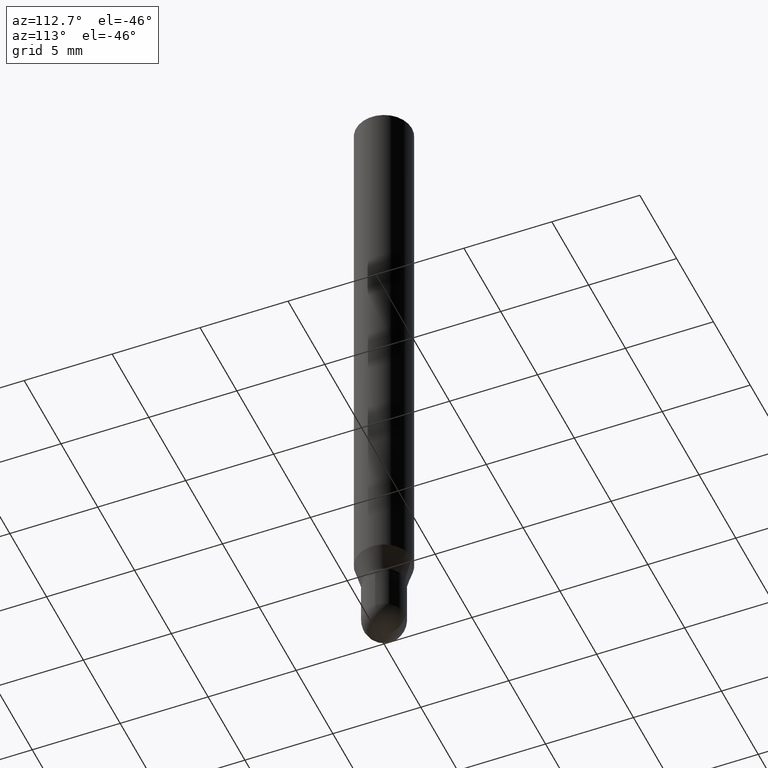
[diagram: clean part render]
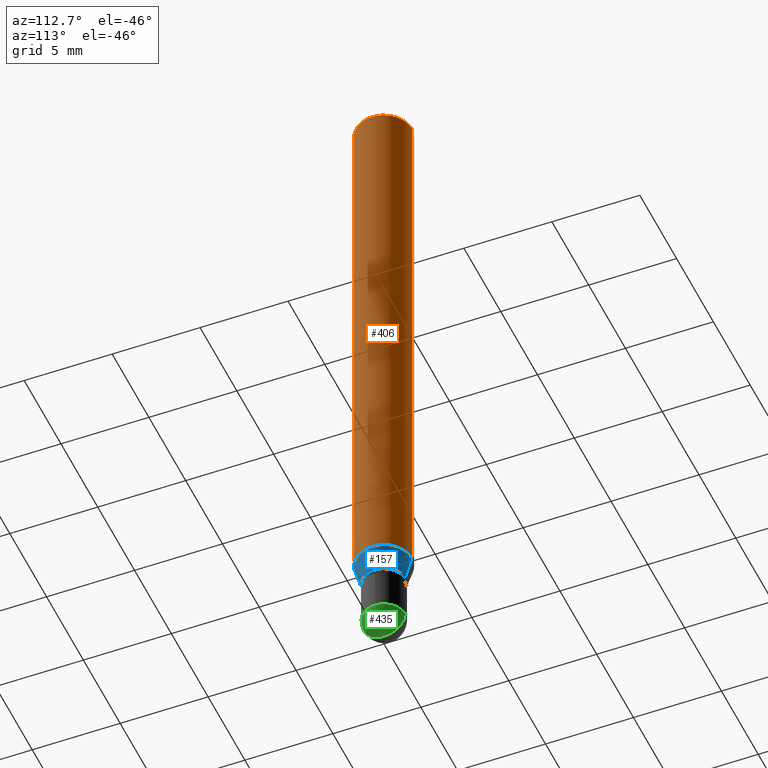
[diagram: same view with three faces highlighted in distinct colors, each labeled with its STEP entity id]
A machine part, auxiliary view with three faces highlighted in distinct colors.
Their STEP definitions:

[orange] entity #406 — the highlighted cylindrical surface (edge-blend (fillet) strip) has radius 1.5875 mm, axis along (-0, 0, 1).
#21 = DIRECTION ( 'NONE',  ( -2.445492424054012945E-29, 3.491447516710668952E-15, 1.000000000000000000 ) ) ;
#35 = CARTESIAN_POINT ( 'NONE',  ( -4.364351673553598192E-16, -0.06250000000000446865, -1.291519237886466831 ) ) ;
#38 = DIRECTION ( 'NONE',  ( -2.445492424054012945E-29, 3.491447516710668952E-15, 1.000000000000000000 ) ) ;
#48 = DIRECTION ( 'NONE',  ( -2.445492424054012945E-29, 3.491447516710668952E-15, 1.000000000000000000 ) ) ;
#51 = AXIS2_PLACEMENT_3D ( 'NONE', #71, #38, #237 ) ;
#71 = CARTESIAN_POINT ( 'NONE',  ( 0.000000000000000000, 0.000000000000000000, 0.000000000000000000 ) ) ;
#92 = CARTESIAN_POINT ( 'NONE',  ( 3.158400511771368099E-29, -4.509271635902760298E-15, -1.291519237886467275 ) ) ;
#109 = CIRCLE ( 'NONE', #381, 0.06250000000000000000 ) ;
#113 = ORIENTED_EDGE ( 'NONE', *, *, #140, .T. ) ;
#140 = EDGE_CURVE ( 'NONE', #424, #235, #284, .T. ) ;
#153 = EDGE_LOOP ( 'NONE', ( #113, #395, #315, #460 ) ) ;
#170 = LINE ( 'NONE', #420, #456 ) ;
#173 = DIRECTION ( 'NONE',  ( -6.982962677686265922E-15, -1.000000000000000000, 3.483106191921935554E-15 ) ) ;
#190 = DIRECTION ( 'NONE',  ( -6.982962677686265922E-15, -1.000000000000000000, 4.370956789862821150E-15 ) ) ;
#204 = CARTESIAN_POINT ( 'NONE',  ( 4.440892098500943678E-16, 0.06249999999999995837, -0.01500000000000022669 ) ) ;
#214 = DIRECTION ( 'NONE',  ( -2.445492424054012945E-29, 3.491447516710668952E-15, 1.000000000000000000 ) ) ;
#229 = CARTESIAN_POINT ( 'NONE',  ( 3.668238636081021817E-31, -5.237171275066006657E-17, -0.01500000000000000812 ) ) ;
#231 = EDGE_CURVE ( 'NONE', #310, #279, #109, .T. ) ;
#235 = VERTEX_POINT ( 'NONE', #342 ) ;
#237 = DIRECTION ( 'NONE',  ( -6.982962677686265922E-15, -1.000000000000000000, 3.491447516710668952E-15 ) ) ;
#258 = EDGE_CURVE ( 'NONE', #424, #310, #461, .T. ) ;
#273 = CARTESIAN_POINT ( 'NONE',  ( -4.364351673553916201E-16, -0.06250000000000000000, 2.182154697944168095E-16 ) ) ;
#279 = VERTEX_POINT ( 'NONE', #204 ) ;
#284 = CIRCLE ( 'NONE', #320, 0.06250000000000000000 ) ;
#285 = CARTESIAN_POINT ( 'NONE',  ( -4.364351673553912750E-16, -0.06250000000000005551, -0.01499999999999979128 ) ) ;
#310 = VERTEX_POINT ( 'NONE', #285 ) ;
#315 = ORIENTED_EDGE ( 'NONE', *, *, #231, .F. ) ;
#320 = AXIS2_PLACEMENT_3D ( 'NONE', #92, #48, #190 ) ;
#342 = CARTESIAN_POINT ( 'NONE',  ( 4.440892098500942692E-16, 0.06249999999999551747, -1.291519237886467497 ) ) ;
#381 = AXIS2_PLACEMENT_3D ( 'NONE', #229, #21, #173 ) ;
#395 = ORIENTED_EDGE ( 'NONE', *, *, #485, .T. ) ;
#406 = ADVANCED_FACE ( 'NONE', ( #469 ), #438, .T. ) ;
#420 = CARTESIAN_POINT ( 'NONE',  ( 4.440892098500625669E-16, 0.06250000000000000000, -2.182154697944168095E-16 ) ) ;
#424 = VERTEX_POINT ( 'NONE', #35 ) ;
#438 = CYLINDRICAL_SURFACE ( 'NONE', #51, 0.06250000000000000000 ) ;
#456 = VECTOR ( 'NONE', #214, 39.37007874015748143 ) ;
#460 = ORIENTED_EDGE ( 'NONE', *, *, #258, .F. ) ;
#461 = LINE ( 'NONE', #273, #510 ) ;
#469 = FACE_OUTER_BOUND ( 'NONE', #153, .T. ) ;
#485 = EDGE_CURVE ( 'NONE', #235, #279, #170, .T. ) ;
#504 = DIRECTION ( 'NONE',  ( -2.445492424054012945E-29, 3.491447516710668952E-15, 1.000000000000000000 ) ) ;
#510 = VECTOR ( 'NONE', #504, 39.37007874015748143 ) ;

[blue] entity #157 — the highlighted conical surface has half-angle 15 deg.
#13 = CARTESIAN_POINT ( 'NONE',  ( -3.316907271900641323E-16, -0.04750000000000462186, -1.347500000000000142 ) ) ;
#35 = CARTESIAN_POINT ( 'NONE',  ( -4.364351673553598192E-16, -0.06250000000000446865, -1.291519237886466831 ) ) ;
#48 = DIRECTION ( 'NONE',  ( -2.445492424054012945E-29, 3.491447516710668952E-15, 1.000000000000000000 ) ) ;
#54 = ORIENTED_EDGE ( 'NONE', *, *, #140, .F. ) ;
#77 = CARTESIAN_POINT ( 'NONE',  ( -3.316907271900641323E-16, -0.04750000000000462186, -1.347500000000000142 ) ) ;
#79 = EDGE_CURVE ( 'NONE', #154, #424, #338, .T. ) ;
#82 = CONICAL_SURFACE ( 'NONE', #379, 0.04749999999999991729, 0.2617993877991508511 ) ;
#92 = CARTESIAN_POINT ( 'NONE',  ( 3.158400511771368099E-29, -4.509271635902760298E-15, -1.291519237886467275 ) ) ;
#101 = AXIS2_PLACEMENT_3D ( 'NONE', #129, #336, #378 ) ;
#129 = CARTESIAN_POINT ( 'NONE',  ( 3.295301041412783780E-29, -4.704725528767627537E-15, -1.347500000000000364 ) ) ;
#131 = DIRECTION ( 'NONE',  ( 1.839019923739603865E-15, 0.2588190451025254579, 0.9659258262890669799 ) ) ;
#140 = EDGE_CURVE ( 'NONE', #424, #235, #284, .T. ) ;
#151 = EDGE_LOOP ( 'NONE', ( #462, #174, #54, #268 ) ) ;
#154 = VERTEX_POINT ( 'NONE', #77 ) ;
#157 = ADVANCED_FACE ( 'NONE', ( #195 ), #82, .T. ) ;
#167 = EDGE_CURVE ( 'NONE', #501, #235, #239, .T. ) ;
#174 = ORIENTED_EDGE ( 'NONE', *, *, #167, .T. ) ;
#190 = DIRECTION ( 'NONE',  ( -6.982962677686265922E-15, -1.000000000000000000, 4.370956789862821150E-15 ) ) ;
#195 = FACE_OUTER_BOUND ( 'NONE', #151, .T. ) ;
#235 = VERTEX_POINT ( 'NONE', #342 ) ;
#239 = LINE ( 'NONE', #333, #344 ) ;
#268 = ORIENTED_EDGE ( 'NONE', *, *, #79, .F. ) ;
#284 = CIRCLE ( 'NONE', #320, 0.06250000000000000000 ) ;
#288 = DIRECTION ( 'NONE',  ( -6.982962677686265922E-15, -1.000000000000000000, 5.751258934030037627E-15 ) ) ;
#302 = VECTOR ( 'NONE', #385, 39.37007874015748854 ) ;
#320 = AXIS2_PLACEMENT_3D ( 'NONE', #92, #48, #190 ) ;
#333 = CARTESIAN_POINT ( 'NONE',  ( 3.375077994860798862E-16, 0.04749999999999521966, -1.347500000000000586 ) ) ;
#336 = DIRECTION ( 'NONE',  ( -2.445492424054012945E-29, 3.491447516710668952E-15, 1.000000000000000000 ) ) ;
#337 = CIRCLE ( 'NONE', #101, 0.04749999999999991729 ) ;
#338 = LINE ( 'NONE', #13, #302 ) ;
#342 = CARTESIAN_POINT ( 'NONE',  ( 4.440892098500942692E-16, 0.06249999999999551747, -1.291519237886467497 ) ) ;
#343 = CARTESIAN_POINT ( 'NONE',  ( 3.907985046680871517E-16, 0.04749999999999521966, -1.347500000000000586 ) ) ;
#344 = VECTOR ( 'NONE', #131, 39.37007874015748854 ) ;
#361 = DIRECTION ( 'NONE',  ( -2.445492424054012945E-29, 3.491447516710668952E-15, 1.000000000000000000 ) ) ;
#378 = DIRECTION ( 'NONE',  ( -6.982962677686265922E-15, -1.000000000000000000, 5.751258934030037627E-15 ) ) ;
#379 = AXIS2_PLACEMENT_3D ( 'NONE', #408, #361, #288 ) ;
#385 = DIRECTION ( 'NONE',  ( -1.807323732225333689E-15, -0.2588190451025186856, 0.9659258262890687563 ) ) ;
#408 = CARTESIAN_POINT ( 'NONE',  ( 3.295301041412783780E-29, -4.704725528767627537E-15, -1.347500000000000364 ) ) ;
#424 = VERTEX_POINT ( 'NONE', #35 ) ;
#451 = EDGE_CURVE ( 'NONE', #154, #501, #337, .T. ) ;
#462 = ORIENTED_EDGE ( 'NONE', *, *, #451, .T. ) ;
#501 = VERTEX_POINT ( 'NONE', #343 ) ;

[green] entity #435 — the highlighted spherical surface has radius 1.2065 mm.
#3 = SPHERICAL_SURFACE ( 'NONE', #83, 0.04750000000000012546 ) ;
#9 = CARTESIAN_POINT ( 'NONE',  ( 3.552043440983912297E-29, -5.071376644669670605E-15, -1.452500000000000346 ) ) ;
#15 = CARTESIAN_POINT ( 'NONE',  ( 3.662110149467302662E-29, -5.245947616708644728E-15, -1.500000000000000444 ) ) ;
#18 = VERTEX_POINT ( 'NONE', #102 ) ;
#28 = EDGE_LOOP ( 'NONE', ( #292, #368, #105, #65 ) ) ;
#31 = CARTESIAN_POINT ( 'NONE',  ( 0.04750000000000000749, -5.237222008264718177E-15, -1.452500000000000346 ) ) ;
#45 = CARTESIAN_POINT ( 'NONE',  ( 3.547981401110308940E-29, -5.077193716965619798E-15, -1.452500000000000124 ) ) ;
#47 = AXIS2_PLACEMENT_3D ( 'NONE', #9, #341, #188 ) ;
#52 = DIRECTION ( 'NONE',  ( -2.445468806185136597E-29, 3.491481338843145583E-15, 1.000000000000000000 ) ) ;
#65 = ORIENTED_EDGE ( 'NONE', *, *, #283, .F. ) ;
#83 = AXIS2_PLACEMENT_3D ( 'NONE', #45, #162, #329 ) ;
#98 = DIRECTION ( 'NONE',  ( -1.000000000000000000, 6.982962677686265922E-15, -4.883557194083112340E-29 ) ) ;
#102 = CARTESIAN_POINT ( 'NONE',  ( 3.375077994860835347E-16, 0.04749999999999498373, -1.452500000000000790 ) ) ;
#105 = ORIENTED_EDGE ( 'NONE', *, *, #471, .F. ) ;
#107 = DIRECTION ( 'NONE',  ( -6.982962677686265922E-15, -1.000000000000000000, 0.000000000000000000 ) ) ;
#116 = AXIS2_PLACEMENT_3D ( 'NONE', #308, #98, #107 ) ;
#127 = DIRECTION ( 'NONE',  ( 7.105427357601001070E-15, 1.000000000000000000, 0.000000000000000000 ) ) ;
#132 = EDGE_CURVE ( 'NONE', #210, #18, #240, .T. ) ;
#148 = CIRCLE ( 'NONE', #116, 0.04750000000000012546 ) ;
#162 = DIRECTION ( 'NONE',  ( 1.000000000000000000, -6.982962677686265922E-15, 4.883557194083112901E-29 ) ) ;
#171 = CARTESIAN_POINT ( 'NONE',  ( 3.547981401110308940E-29, -5.077193716965619798E-15, -1.452500000000000124 ) ) ;
#175 = EDGE_CURVE ( 'NONE', #210, #444, #148, .T. ) ;
#182 = CARTESIAN_POINT ( 'NONE',  ( 3.552043440983912297E-29, -5.071376644669670605E-15, -1.452500000000000346 ) ) ;
#188 = DIRECTION ( 'NONE',  ( 1.000000000000000000, -6.982962677686260400E-15, 0.000000000000000000 ) ) ;
#210 = VERTEX_POINT ( 'NONE', #15 ) ;
#240 = CIRCLE ( 'NONE', #496, 0.04750000000000012546 ) ;
#283 = EDGE_CURVE ( 'NONE', #444, #287, #364, .T. ) ;
#287 = VERTEX_POINT ( 'NONE', #31 ) ;
#292 = ORIENTED_EDGE ( 'NONE', *, *, #175, .F. ) ;
#308 = CARTESIAN_POINT ( 'NONE',  ( 3.547981401110308940E-29, -5.077193716965619798E-15, -1.452500000000000124 ) ) ;
#329 = DIRECTION ( 'NONE',  ( -6.982962677686265922E-15, -1.000000000000000000, 5.751258934030012383E-15 ) ) ;
#334 = DIRECTION ( 'NONE',  ( 1.000000000000000000, -7.105427357601001070E-15, 4.926315508542082329E-29 ) ) ;
#341 = DIRECTION ( 'NONE',  ( -2.445468806185136597E-29, 3.491481338843145583E-15, 1.000000000000000000 ) ) ;
#364 = CIRCLE ( 'NONE', #47, 0.04750000000000000749 ) ;
#368 = ORIENTED_EDGE ( 'NONE', *, *, #132, .T. ) ;
#386 = DIRECTION ( 'NONE',  ( 1.000000000000000000, -6.982962677686260400E-15, 0.000000000000000000 ) ) ;
#410 = AXIS2_PLACEMENT_3D ( 'NONE', #182, #52, #386 ) ;
#421 = FACE_OUTER_BOUND ( 'NONE', #28, .T. ) ;
#435 = ADVANCED_FACE ( 'NONE', ( #421 ), #3, .T. ) ;
#440 = CIRCLE ( 'NONE', #410, 0.04750000000000000749 ) ;
#444 = VERTEX_POINT ( 'NONE', #482 ) ;
#471 = EDGE_CURVE ( 'NONE', #287, #18, #440, .T. ) ;
#482 = CARTESIAN_POINT ( 'NONE',  ( -3.316907271900626039E-16, -0.04750000000000514228, -1.452500000000000124 ) ) ;
#496 = AXIS2_PLACEMENT_3D ( 'NONE', #171, #334, #127 ) ;